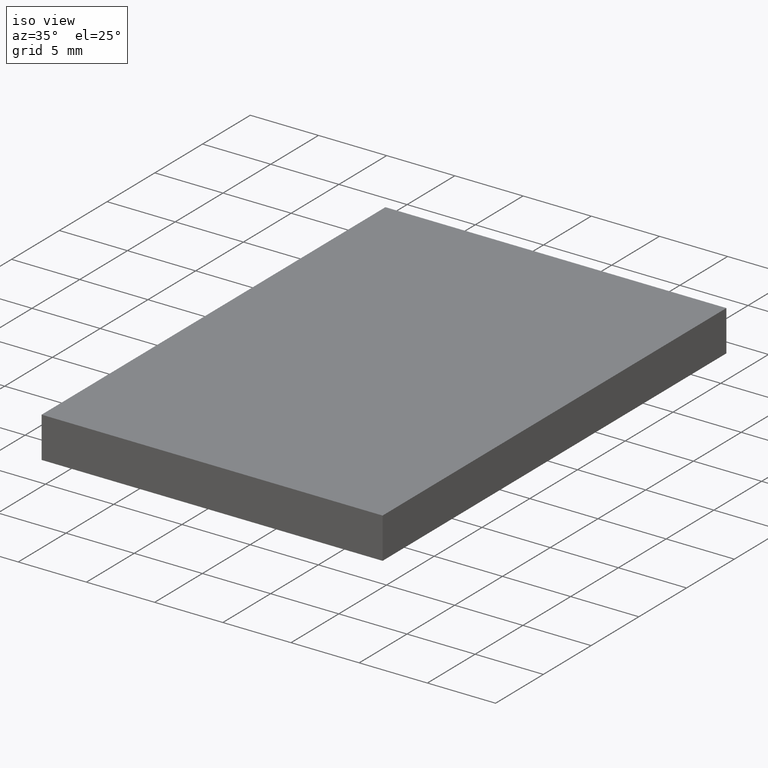
[diagram: clean part render]
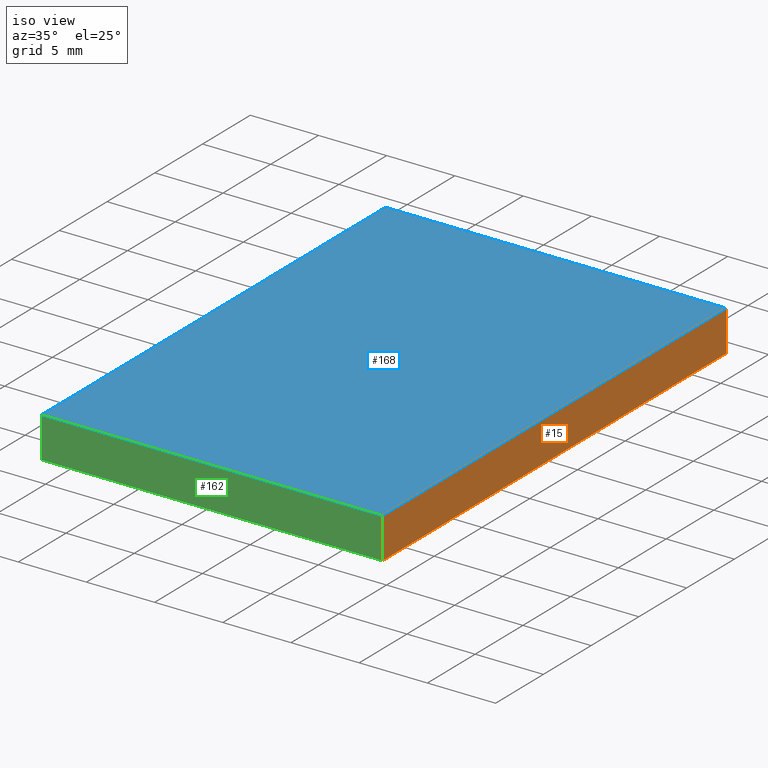
[diagram: same view with three faces highlighted in distinct colors, each labeled with its STEP entity id]
A machine part, iso view with three faces highlighted in distinct colors.
Their STEP definitions:

[orange] entity #15 — the highlighted planar face has unit normal (-1, -0, 0).
#13 = CARTESIAN_POINT ( 'NONE',  ( 18.64837398373983700, 7.520325203252024700, 3.000000000000000000 ) ) ;
#15 = ADVANCED_FACE ( 'NONE', ( #297 ), #213, .F. ) ;
#29 = VERTEX_POINT ( 'NONE', #143 ) ;
#35 = EDGE_CURVE ( 'NONE', #29, #68, #269, .T. ) ;
#50 = AXIS2_PLACEMENT_3D ( 'NONE', #112, #286, #237 ) ;
#52 = ORIENTED_EDGE ( 'NONE', *, *, #249, .T. ) ;
#64 = CARTESIAN_POINT ( 'NONE',  ( 18.64837398373983700, 7.520325203252024700, 0.0000000000000000000 ) ) ;
#68 = VERTEX_POINT ( 'NONE', #13 ) ;
#69 = DIRECTION ( 'NONE',  ( -0.0000000000000000000, -0.0000000000000000000, -1.000000000000000000 ) ) ;
#86 = LINE ( 'NONE', #310, #129 ) ;
#90 = VECTOR ( 'NONE', #288, 1000.000000000000000 ) ;
#93 = DIRECTION ( 'NONE',  ( -0.0000000000000000000, -0.0000000000000000000, -1.000000000000000000 ) ) ;
#112 = CARTESIAN_POINT ( 'NONE',  ( 18.64837398373983700, 7.520325203252024700, 3.000000000000000000 ) ) ;
#122 = VERTEX_POINT ( 'NONE', #165 ) ;
#126 = LINE ( 'NONE', #64, #90 ) ;
#129 = VECTOR ( 'NONE', #93, 1000.000000000000000 ) ;
#143 = CARTESIAN_POINT ( 'NONE',  ( 18.64837398373984800, -28.47967479674797200, 3.000000000000000000 ) ) ;
#144 = VECTOR ( 'NONE', #190, 1000.000000000000000 ) ;
#152 = ORIENTED_EDGE ( 'NONE', *, *, #35, .F. ) ;
#154 = EDGE_CURVE ( 'NONE', #122, #277, #126, .T. ) ;
#165 = CARTESIAN_POINT ( 'NONE',  ( 18.64837398373984800, -28.47967479674797200, 0.0000000000000000000 ) ) ;
#190 = DIRECTION ( 'NONE',  ( -2.891205793294678800E-016, 1.000000000000000000, -0.0000000000000000000 ) ) ;
#193 = EDGE_LOOP ( 'NONE', ( #309, #284, #152, #52 ) ) ;
#204 = EDGE_CURVE ( 'NONE', #68, #277, #259, .T. ) ;
#213 = PLANE ( 'NONE',  #50 ) ;
#226 = CARTESIAN_POINT ( 'NONE',  ( 18.64837398373983700, 7.520325203252024700, 3.000000000000000000 ) ) ;
#237 = DIRECTION ( 'NONE',  ( 2.891205793294678800E-016, -1.000000000000000000, 0.0000000000000000000 ) ) ;
#249 = EDGE_CURVE ( 'NONE', #29, #122, #86, .T. ) ;
#259 = LINE ( 'NONE', #226, #308 ) ;
#261 = CARTESIAN_POINT ( 'NONE',  ( 18.64837398373983700, 7.520325203252024700, 3.000000000000000000 ) ) ;
#269 = LINE ( 'NONE', #261, #144 ) ;
#277 = VERTEX_POINT ( 'NONE', #312 ) ;
#284 = ORIENTED_EDGE ( 'NONE', *, *, #204, .F. ) ;
#286 = DIRECTION ( 'NONE',  ( -1.000000000000000000, -2.891205793294678800E-016, 0.0000000000000000000 ) ) ;
#288 = DIRECTION ( 'NONE',  ( -2.891205793294678800E-016, 1.000000000000000000, -0.0000000000000000000 ) ) ;
#297 = FACE_OUTER_BOUND ( 'NONE', #193, .T. ) ;
#308 = VECTOR ( 'NONE', #69, 1000.000000000000000 ) ;
#309 = ORIENTED_EDGE ( 'NONE', *, *, #154, .T. ) ;
#310 = CARTESIAN_POINT ( 'NONE',  ( 18.64837398373984800, -28.47967479674797200, 3.000000000000000000 ) ) ;
#312 = CARTESIAN_POINT ( 'NONE',  ( 18.64837398373983700, 7.520325203252024700, 0.0000000000000000000 ) ) ;

[blue] entity #168 — the highlighted planar face has unit normal (-0, 0, 1).
#13 = CARTESIAN_POINT ( 'NONE',  ( 18.64837398373983700, 7.520325203252024700, 3.000000000000000000 ) ) ;
#16 = CARTESIAN_POINT ( 'NONE',  ( -6.351626016260162500, 7.520325203252024700, 3.000000000000000000 ) ) ;
#21 = DIRECTION ( 'NONE',  ( 1.204669080539449300E-016, -1.000000000000000000, 0.0000000000000000000 ) ) ;
#23 = DIRECTION ( 'NONE',  ( 1.000000000000000000, 0.0000000000000000000, 0.0000000000000000000 ) ) ;
#29 = VERTEX_POINT ( 'NONE', #143 ) ;
#30 = VECTOR ( 'NONE', #21, 1000.000000000000000 ) ;
#35 = EDGE_CURVE ( 'NONE', #29, #68, #269, .T. ) ;
#42 = VECTOR ( 'NONE', #23, 1000.000000000000000 ) ;
#59 = ORIENTED_EDGE ( 'NONE', *, *, #35, .T. ) ;
#65 = CARTESIAN_POINT ( 'NONE',  ( -6.351626016260158100, -28.47967479674797200, 3.000000000000000000 ) ) ;
#68 = VERTEX_POINT ( 'NONE', #13 ) ;
#91 = CARTESIAN_POINT ( 'NONE',  ( -6.351626016260162500, 7.520325203252024700, 3.000000000000000000 ) ) ;
#103 = ORIENTED_EDGE ( 'NONE', *, *, #235, .T. ) ;
#117 = PLANE ( 'NONE',  #123 ) ;
#123 = AXIS2_PLACEMENT_3D ( 'NONE', #215, #240, #268 ) ;
#143 = CARTESIAN_POINT ( 'NONE',  ( 18.64837398373984800, -28.47967479674797200, 3.000000000000000000 ) ) ;
#144 = VECTOR ( 'NONE', #190, 1000.000000000000000 ) ;
#149 = EDGE_LOOP ( 'NONE', ( #103, #197, #59, #159 ) ) ;
#153 = CARTESIAN_POINT ( 'NONE',  ( -6.351626016260162500, 7.520325203252024700, 3.000000000000000000 ) ) ;
#159 = ORIENTED_EDGE ( 'NONE', *, *, #179, .T. ) ;
#168 = ADVANCED_FACE ( 'NONE', ( #228 ), #117, .T. ) ;
#173 = VERTEX_POINT ( 'NONE', #65 ) ;
#179 = EDGE_CURVE ( 'NONE', #68, #267, #181, .T. ) ;
#181 = LINE ( 'NONE', #16, #276 ) ;
#190 = DIRECTION ( 'NONE',  ( -2.891205793294678800E-016, 1.000000000000000000, -0.0000000000000000000 ) ) ;
#196 = LINE ( 'NONE', #242, #42 ) ;
#197 = ORIENTED_EDGE ( 'NONE', *, *, #200, .T. ) ;
#200 = EDGE_CURVE ( 'NONE', #173, #29, #196, .T. ) ;
#215 = CARTESIAN_POINT ( 'NONE',  ( 0.0000000000000000000, 0.0000000000000000000, 3.000000000000000000 ) ) ;
#220 = DIRECTION ( 'NONE',  ( -1.000000000000000000, -0.0000000000000000000, -0.0000000000000000000 ) ) ;
#228 = FACE_OUTER_BOUND ( 'NONE', #149, .T. ) ;
#235 = EDGE_CURVE ( 'NONE', #267, #173, #251, .T. ) ;
#240 = DIRECTION ( 'NONE',  ( -0.0000000000000000000, 0.0000000000000000000, 1.000000000000000000 ) ) ;
#242 = CARTESIAN_POINT ( 'NONE',  ( -6.351626016260158100, -28.47967479674797200, 3.000000000000000000 ) ) ;
#251 = LINE ( 'NONE', #153, #30 ) ;
#261 = CARTESIAN_POINT ( 'NONE',  ( 18.64837398373983700, 7.520325203252024700, 3.000000000000000000 ) ) ;
#267 = VERTEX_POINT ( 'NONE', #91 ) ;
#268 = DIRECTION ( 'NONE',  ( 1.000000000000000000, 0.0000000000000000000, 0.0000000000000000000 ) ) ;
#269 = LINE ( 'NONE', #261, #144 ) ;
#276 = VECTOR ( 'NONE', #220, 1000.000000000000000 ) ;

[green] entity #162 — the highlighted planar face has unit normal (0, 1, 0).
#1 = LINE ( 'NONE', #219, #186 ) ;
#3 = ORIENTED_EDGE ( 'NONE', *, *, #249, .F. ) ;
#12 = AXIS2_PLACEMENT_3D ( 'NONE', #62, #89, #265 ) ;
#22 = DIRECTION ( 'NONE',  ( -0.0000000000000000000, -0.0000000000000000000, -1.000000000000000000 ) ) ;
#23 = DIRECTION ( 'NONE',  ( 1.000000000000000000, 0.0000000000000000000, 0.0000000000000000000 ) ) ;
#29 = VERTEX_POINT ( 'NONE', #143 ) ;
#42 = VECTOR ( 'NONE', #23, 1000.000000000000000 ) ;
#43 = CARTESIAN_POINT ( 'NONE',  ( -6.351626016260158100, -28.47967479674797200, 0.0000000000000000000 ) ) ;
#62 = CARTESIAN_POINT ( 'NONE',  ( -6.351626016260158100, -28.47967479674797200, 3.000000000000000000 ) ) ;
#63 = FACE_OUTER_BOUND ( 'NONE', #135, .T. ) ;
#65 = CARTESIAN_POINT ( 'NONE',  ( -6.351626016260158100, -28.47967479674797200, 3.000000000000000000 ) ) ;
#81 = ORIENTED_EDGE ( 'NONE', *, *, #291, .T. ) ;
#86 = LINE ( 'NONE', #310, #129 ) ;
#88 = PLANE ( 'NONE',  #12 ) ;
#89 = DIRECTION ( 'NONE',  ( 0.0000000000000000000, 1.000000000000000000, 0.0000000000000000000 ) ) ;
#93 = DIRECTION ( 'NONE',  ( -0.0000000000000000000, -0.0000000000000000000, -1.000000000000000000 ) ) ;
#122 = VERTEX_POINT ( 'NONE', #165 ) ;
#129 = VECTOR ( 'NONE', #93, 1000.000000000000000 ) ;
#135 = EDGE_LOOP ( 'NONE', ( #81, #3, #255, #211 ) ) ;
#143 = CARTESIAN_POINT ( 'NONE',  ( 18.64837398373984800, -28.47967479674797200, 3.000000000000000000 ) ) ;
#150 = DIRECTION ( 'NONE',  ( 1.000000000000000000, 0.0000000000000000000, 0.0000000000000000000 ) ) ;
#162 = ADVANCED_FACE ( 'NONE', ( #63 ), #88, .F. ) ;
#165 = CARTESIAN_POINT ( 'NONE',  ( 18.64837398373984800, -28.47967479674797200, 0.0000000000000000000 ) ) ;
#173 = VERTEX_POINT ( 'NONE', #65 ) ;
#186 = VECTOR ( 'NONE', #22, 1000.000000000000000 ) ;
#196 = LINE ( 'NONE', #242, #42 ) ;
#200 = EDGE_CURVE ( 'NONE', #173, #29, #196, .T. ) ;
#211 = ORIENTED_EDGE ( 'NONE', *, *, #279, .T. ) ;
#219 = CARTESIAN_POINT ( 'NONE',  ( -6.351626016260158100, -28.47967479674797200, 3.000000000000000000 ) ) ;
#239 = LINE ( 'NONE', #306, #289 ) ;
#242 = CARTESIAN_POINT ( 'NONE',  ( -6.351626016260158100, -28.47967479674797200, 3.000000000000000000 ) ) ;
#249 = EDGE_CURVE ( 'NONE', #29, #122, #86, .T. ) ;
#255 = ORIENTED_EDGE ( 'NONE', *, *, #200, .F. ) ;
#264 = VERTEX_POINT ( 'NONE', #43 ) ;
#265 = DIRECTION ( 'NONE',  ( 0.0000000000000000000, -0.0000000000000000000, 1.000000000000000000 ) ) ;
#279 = EDGE_CURVE ( 'NONE', #173, #264, #1, .T. ) ;
#289 = VECTOR ( 'NONE', #150, 1000.000000000000000 ) ;
#291 = EDGE_CURVE ( 'NONE', #264, #122, #239, .T. ) ;
#306 = CARTESIAN_POINT ( 'NONE',  ( -6.351626016260158100, -28.47967479674797200, 0.0000000000000000000 ) ) ;
#310 = CARTESIAN_POINT ( 'NONE',  ( 18.64837398373984800, -28.47967479674797200, 3.000000000000000000 ) ) ;